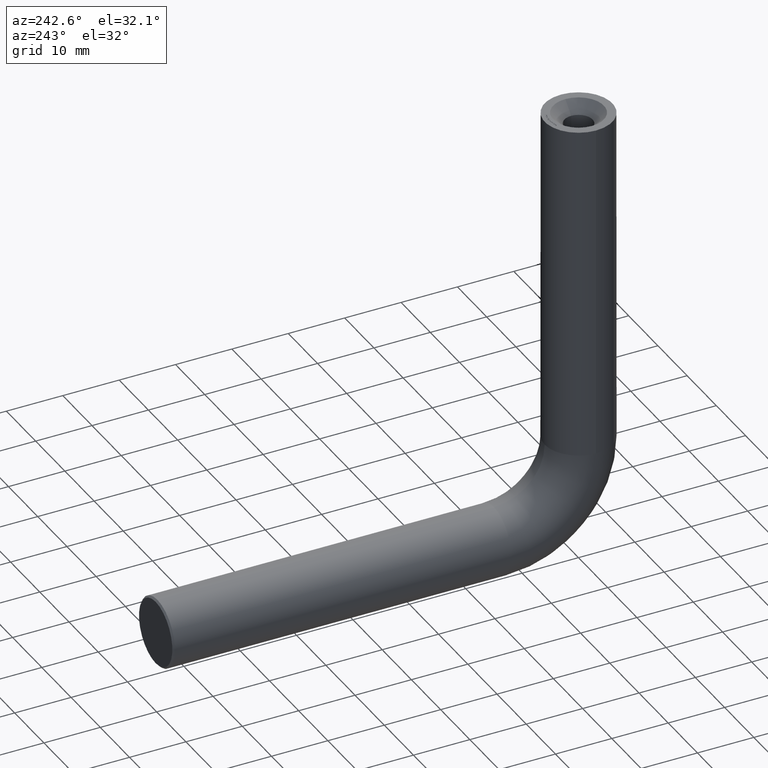
[diagram: clean part render]
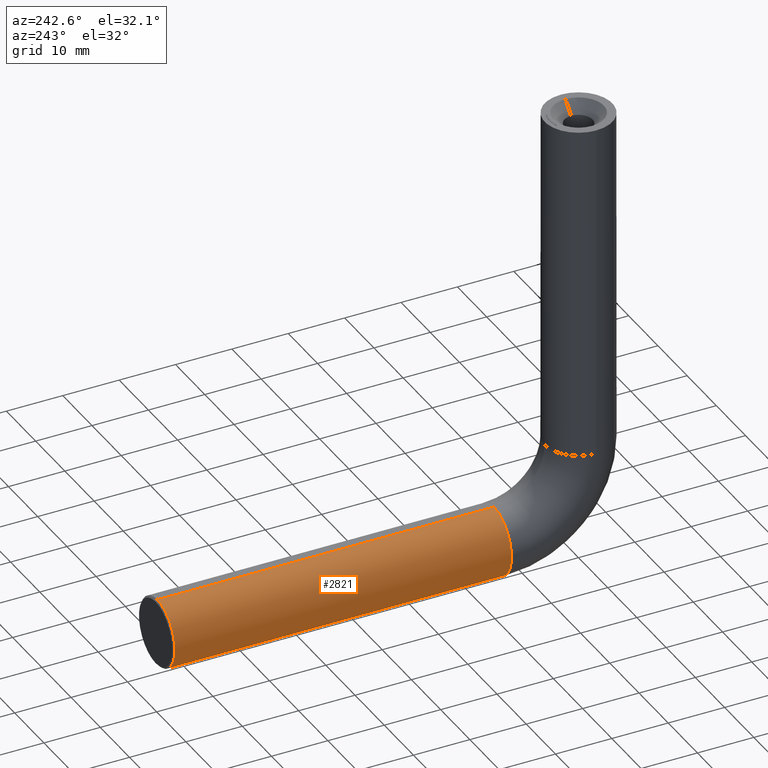
[diagram: same view with one face highlighted and labeled with its STEP entity id]
A machine part, auxiliary view. The second image highlights one B-rep face of the part: STEP entity #2821.
In plain terms, the highlighted cylindrical surface (partial cylindrical patch) has radius 6 mm, axis along (0, 1, 0).
Its self-contained STEP definition (entity closure, byte-faithful):
#335 = CARTESIAN_POINT ( 'NONE',  ( 7.347880794884114806E-16, 15.00000000000000000, -80.99999999999998579 ) ) ;
#866 = AXIS2_PLACEMENT_3D ( 'NONE', #4783, #11281, #7662 ) ;
#1667 = CARTESIAN_POINT ( 'NONE',  ( 0.000000000000000000, 14.99999999999999822, -68.99999999999997158 ) ) ;
#1991 = ORIENTED_EDGE ( 'NONE', *, *, #5386, .F. ) ;
#2040 = VECTOR ( 'NONE', #7826, 1000.000000000000000 ) ;
#2486 = VERTEX_POINT ( 'NONE', #335 ) ;
#2624 = DIRECTION ( 'NONE',  ( 1.000000000000000000, 0.000000000000000000, 0.000000000000000000 ) ) ;
#2711 = CYLINDRICAL_SURFACE ( 'NONE', #8449, 6.000000000000005329 ) ;
#2821 = ADVANCED_FACE ( 'NONE', ( #10347 ), #2711, .T. ) ;
#3109 = AXIS2_PLACEMENT_3D ( 'NONE', #4418, #4467, #2624 ) ;
#3496 = EDGE_CURVE ( 'NONE', #2486, #4744, #6722, .T. ) ;
#4215 = ORIENTED_EDGE ( 'NONE', *, *, #3496, .F. ) ;
#4245 = VECTOR ( 'NONE', #5460, 1000.000000000000000 ) ;
#4418 = CARTESIAN_POINT ( 'NONE',  ( 0.000000000000000000, 15.00000000000000000, -74.99999999999998579 ) ) ;
#4467 = DIRECTION ( 'NONE',  ( 0.000000000000000000, -1.000000000000000000, 6.123233995736766036E-17 ) ) ;
#4744 = VERTEX_POINT ( 'NONE', #9479 ) ;
#4783 = CARTESIAN_POINT ( 'NONE',  ( 0.000000000000000000, 74.69999999999998863, -74.99999999999997158 ) ) ;
#4817 = ORIENTED_EDGE ( 'NONE', *, *, #7917, .T. ) ;
#4833 = CARTESIAN_POINT ( 'NONE',  ( 0.000000000000000000, 74.69999999999998863, -68.99999999999995737 ) ) ;
#5226 = EDGE_LOOP ( 'NONE', ( #4215, #1991, #11369, #4817 ) ) ;
#5386 = EDGE_CURVE ( 'NONE', #10622, #2486, #8553, .T. ) ;
#5460 = DIRECTION ( 'NONE',  ( 0.000000000000000000, 1.000000000000000000, 2.312964634635742957E-16 ) ) ;
#6478 = CIRCLE ( 'NONE', #866, 6.000000000000005329 ) ;
#6546 = CARTESIAN_POINT ( 'NONE',  ( 0.000000000000000000, 15.00000000000000000, -68.99999999999997158 ) ) ;
#6722 = LINE ( 'NONE', #10769, #2040 ) ;
#7339 = LINE ( 'NONE', #1667, #4245 ) ;
#7662 = DIRECTION ( 'NONE',  ( 0.000000000000000000, 0.000000000000000000, -1.000000000000000000 ) ) ;
#7826 = DIRECTION ( 'NONE',  ( 0.000000000000000000, 1.000000000000000000, 2.312964634635742957E-16 ) ) ;
#7917 = EDGE_CURVE ( 'NONE', #9224, #4744, #6478, .T. ) ;
#8449 = AXIS2_PLACEMENT_3D ( 'NONE', #8792, #9759, #11848 ) ;
#8553 = CIRCLE ( 'NONE', #3109, 6.000000000000000888 ) ;
#8792 = CARTESIAN_POINT ( 'NONE',  ( 0.000000000000000000, 15.00000000000000000, -74.99999999999998579 ) ) ;
#9224 = VERTEX_POINT ( 'NONE', #4833 ) ;
#9479 = CARTESIAN_POINT ( 'NONE',  ( 7.347880794884114806E-16, 74.69999999999998863, -80.99999999999997158 ) ) ;
#9759 = DIRECTION ( 'NONE',  ( 0.000000000000000000, 1.000000000000000000, 2.312964634635742957E-16 ) ) ;
#10152 = EDGE_CURVE ( 'NONE', #10622, #9224, #7339, .T. ) ;
#10347 = FACE_OUTER_BOUND ( 'NONE', #5226, .T. ) ;
#10622 = VERTEX_POINT ( 'NONE', #6546 ) ;
#10769 = CARTESIAN_POINT ( 'NONE',  ( 7.347880794884120722E-16, 15.00000000000000178, -80.99999999999998579 ) ) ;
#11281 = DIRECTION ( 'NONE',  ( -0.000000000000000000, -1.000000000000000000, -0.000000000000000000 ) ) ;
#11369 = ORIENTED_EDGE ( 'NONE', *, *, #10152, .T. ) ;
#11848 = DIRECTION ( 'NONE',  ( 0.000000000000000000, -2.891205793294675861E-16, 1.000000000000000000 ) ) ;